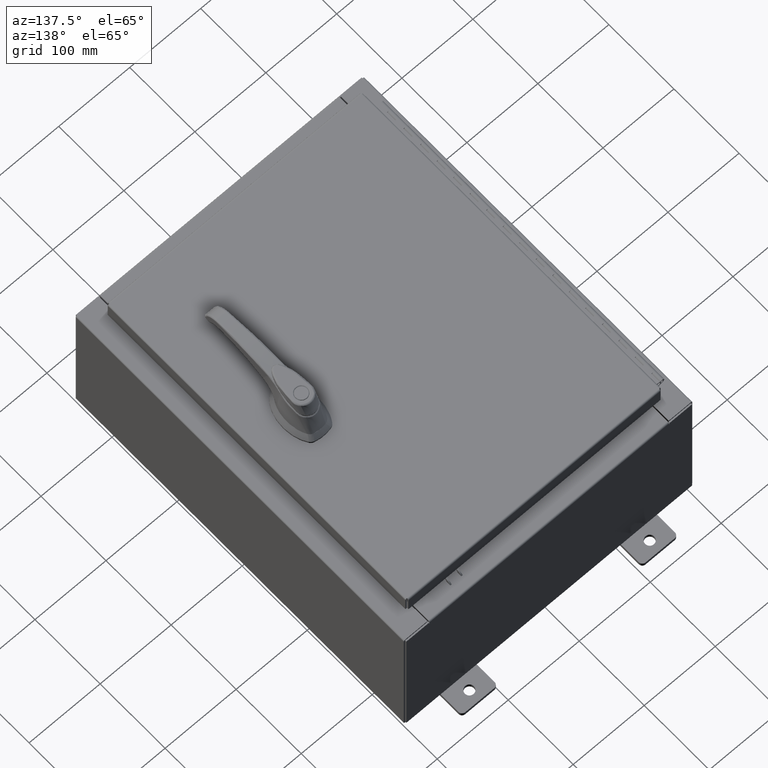
[diagram: clean part render]
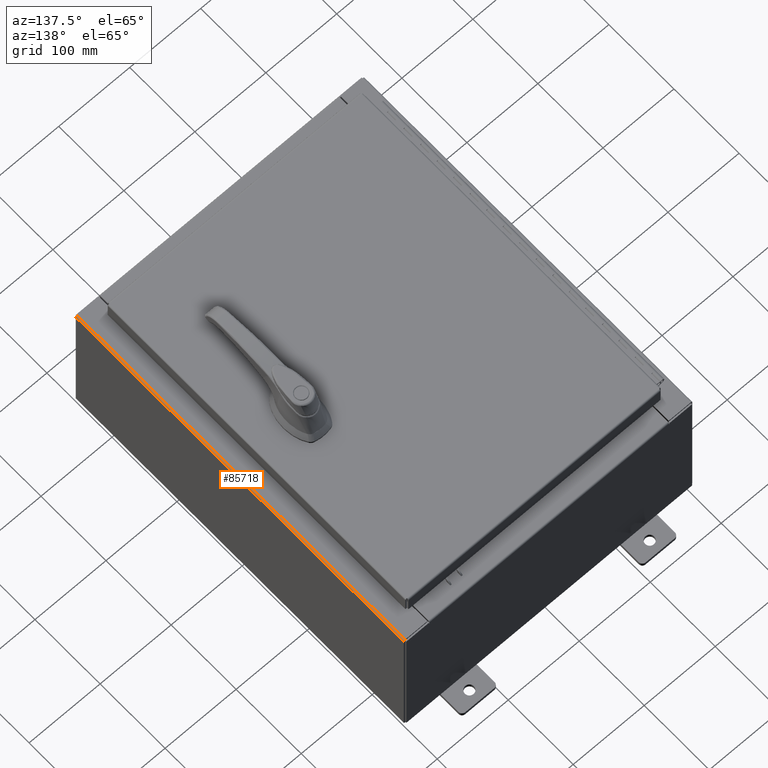
[diagram: same view with one face highlighted and labeled with its STEP entity id]
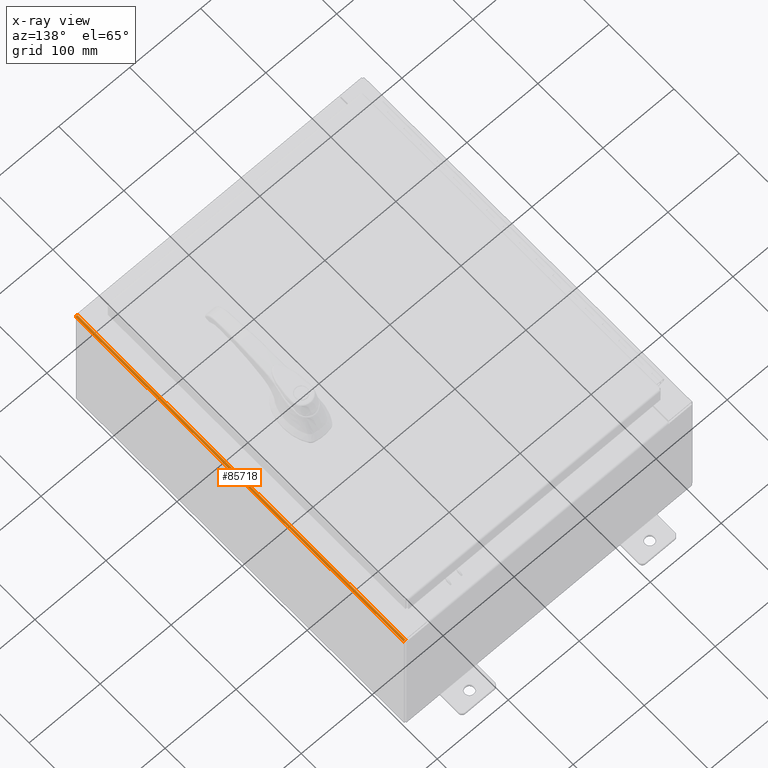
[diagram: x-ray of the same camera — body ghosted, the highlighted face saturated]
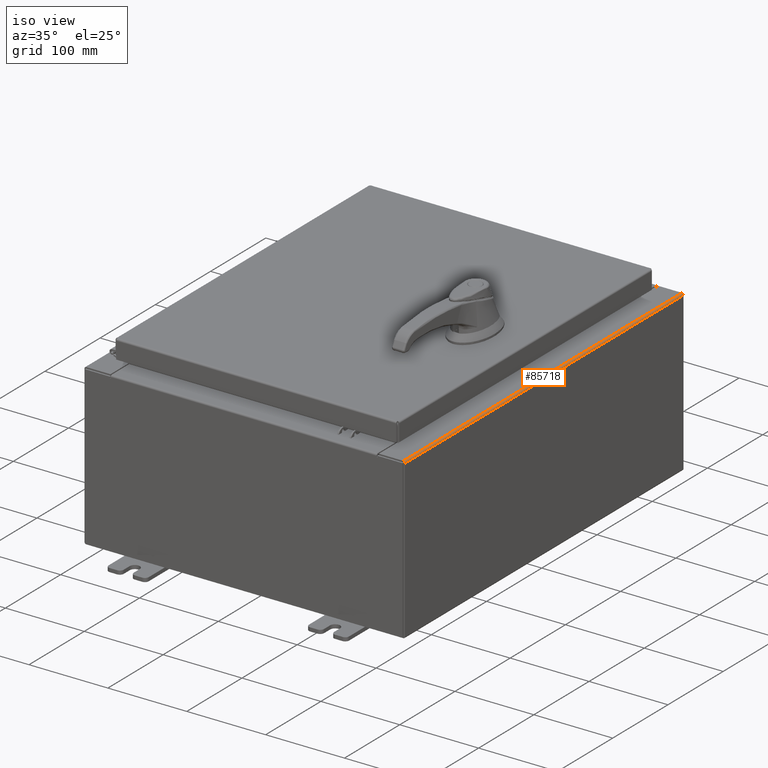
[diagram: same view with one face highlighted and labeled with its STEP entity id]
A machine part, auxiliary view. The second image highlights one B-rep face of the part: STEP entity #85718.
The next image is the same camera in x-ray: the body ghosted, the highlighted face saturated — about 0% of this face is hidden behind the body in this view.
A second angle (iso view) of the same face is appended — the face is thin or edge-on in the first view.
In plain terms, the highlighted cylindrical surface (edge-blend (fillet) strip) has radius 2.2276 mm, axis along (0, 1, 0).
Its self-contained STEP definition (entity closure, byte-faithful):
#5985 = CARTESIAN_POINT ( 'NONE',  ( 7.912300000000029400, 9.925299999999991100, 7.925300000000000000 ) ) ;
#8949 = VECTOR ( 'NONE', #95795, 39.37007874015748100 ) ;
#12596 = CARTESIAN_POINT ( 'NONE',  ( 7.912300000000029400, -9.925300000000001800, 7.925300000000000000 ) ) ;
#13143 = AXIS2_PLACEMENT_3D ( 'NONE', #87873, #37362, #96315 ) ;
#14176 = CARTESIAN_POINT ( 'NONE',  ( 8.000000000000030200, 9.925299999999991100, 7.837599999999999200 ) ) ;
#14255 = EDGE_CURVE ( 'NONE', #108177, #72569, #28145, .T. ) ;
#14871 = LINE ( 'NONE', #12596, #101935 ) ;
#19425 = AXIS2_PLACEMENT_3D ( 'NONE', #48077, #107071, #56578 ) ;
#21045 = DIRECTION ( 'NONE',  ( -0.0000000000000000000, -1.000000000000000000, -0.0000000000000000000 ) ) ;
#21378 = CYLINDRICAL_SURFACE ( 'NONE', #40975, 0.08770000000000026400 ) ;
#28145 = CIRCLE ( 'NONE', #13143, 0.08770000000000026400 ) ;
#29410 = EDGE_CURVE ( 'NONE', #82442, #104854, #38874, .T. ) ;
#31351 = LINE ( 'NONE', #36807, #8949 ) ;
#36807 = CARTESIAN_POINT ( 'NONE',  ( 8.000000000000030200, 9.925299999999992900, 7.837599999999999200 ) ) ;
#37362 = DIRECTION ( 'NONE',  ( -0.0000000000000000000, -1.000000000000000000, -0.0000000000000000000 ) ) ;
#38874 = CIRCLE ( 'NONE', #19425, 0.08770000000000026400 ) ;
#39464 = ORIENTED_EDGE ( 'NONE', *, *, #29410, .F. ) ;
#40975 = AXIS2_PLACEMENT_3D ( 'NONE', #55076, #79803, #46588 ) ;
#44937 = EDGE_LOOP ( 'NONE', ( #102706, #39464, #49258, #69220 ) ) ;
#46588 = DIRECTION ( 'NONE',  ( 1.245996804407870000E-014, 0.0000000000000000000, 1.000000000000000000 ) ) ;
#48077 = CARTESIAN_POINT ( 'NONE',  ( 7.912300000000029400, 9.925299999999991100, 7.837599999999999200 ) ) ;
#49258 = ORIENTED_EDGE ( 'NONE', *, *, #105316, .T. ) ;
#55076 = CARTESIAN_POINT ( 'NONE',  ( 7.912300000000029400, 9.925299999999992900, 7.837599999999999200 ) ) ;
#56578 = DIRECTION ( 'NONE',  ( 0.0000000000000000000, 0.0000000000000000000, 1.000000000000000000 ) ) ;
#69220 = ORIENTED_EDGE ( 'NONE', *, *, #14255, .F. ) ;
#72569 = VERTEX_POINT ( 'NONE', #95981 ) ;
#79803 = DIRECTION ( 'NONE',  ( 0.0000000000000000000, 1.000000000000000000, 0.0000000000000000000 ) ) ;
#82442 = VERTEX_POINT ( 'NONE', #5985 ) ;
#85718 = ADVANCED_FACE ( 'NONE', ( #88688 ), #21378, .T. ) ;
#87873 = CARTESIAN_POINT ( 'NONE',  ( 7.912300000000029400, -9.925300000000001800, 7.837599999999999200 ) ) ;
#88688 = FACE_OUTER_BOUND ( 'NONE', #44937, .T. ) ;
#95795 = DIRECTION ( 'NONE',  ( -0.0000000000000000000, -1.000000000000000000, -0.0000000000000000000 ) ) ;
#95981 = CARTESIAN_POINT ( 'NONE',  ( 7.912300000000029400, -9.925300000000001800, 7.925300000000000000 ) ) ;
#96315 = DIRECTION ( 'NONE',  ( 0.0000000000000000000, 0.0000000000000000000, 1.000000000000000000 ) ) ;
#99030 = EDGE_CURVE ( 'NONE', #104854, #108177, #31351, .T. ) ;
#101935 = VECTOR ( 'NONE', #21045, 39.37007874015748100 ) ;
#102706 = ORIENTED_EDGE ( 'NONE', *, *, #99030, .F. ) ;
#104854 = VERTEX_POINT ( 'NONE', #14176 ) ;
#105316 = EDGE_CURVE ( 'NONE', #82442, #72569, #14871, .T. ) ;
#106568 = CARTESIAN_POINT ( 'NONE',  ( 8.000000000000030200, -9.925300000000001800, 7.837599999999999200 ) ) ;
#107071 = DIRECTION ( 'NONE',  ( 0.0000000000000000000, 1.000000000000000000, 0.0000000000000000000 ) ) ;
#108177 = VERTEX_POINT ( 'NONE', #106568 ) ;